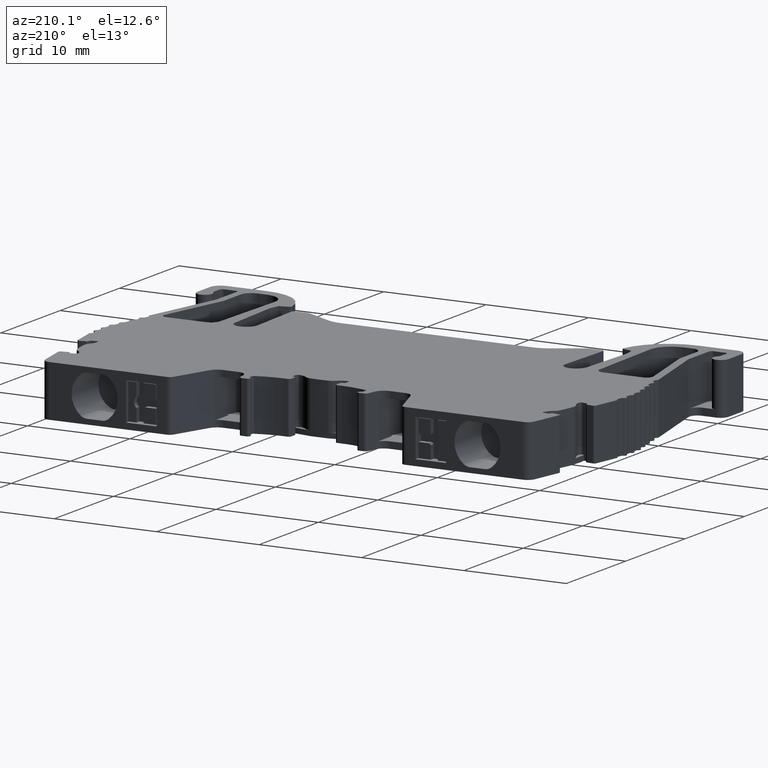
[diagram: clean part render]
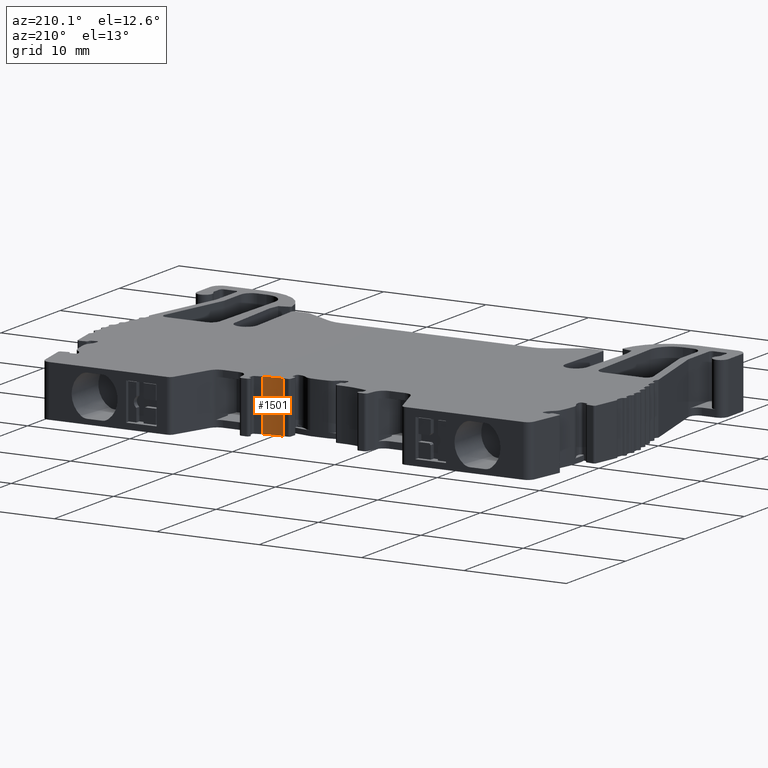
[diagram: same view with one face highlighted and labeled with its STEP entity id]
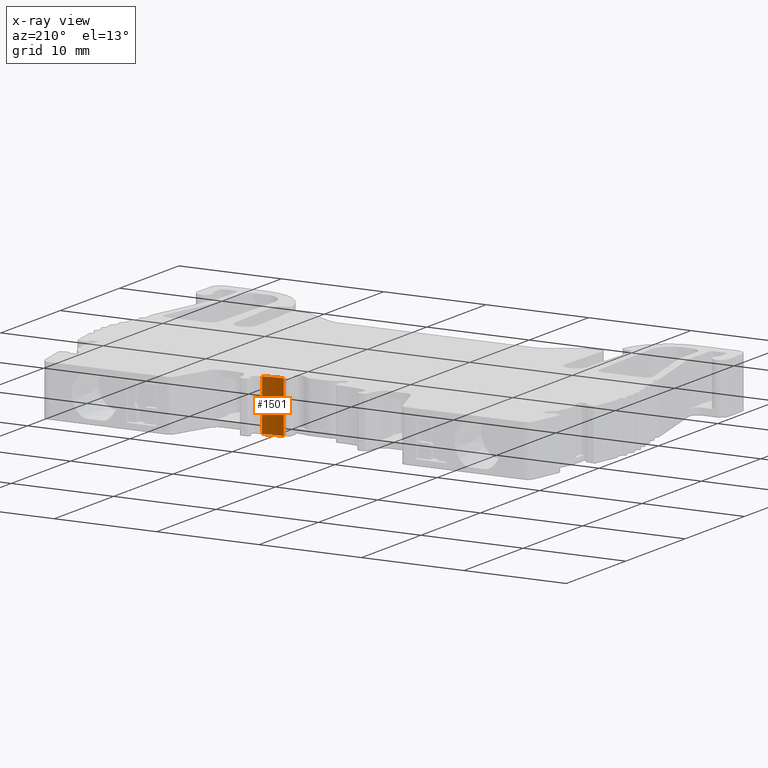
[diagram: x-ray of the same camera — body ghosted, the highlighted face saturated]
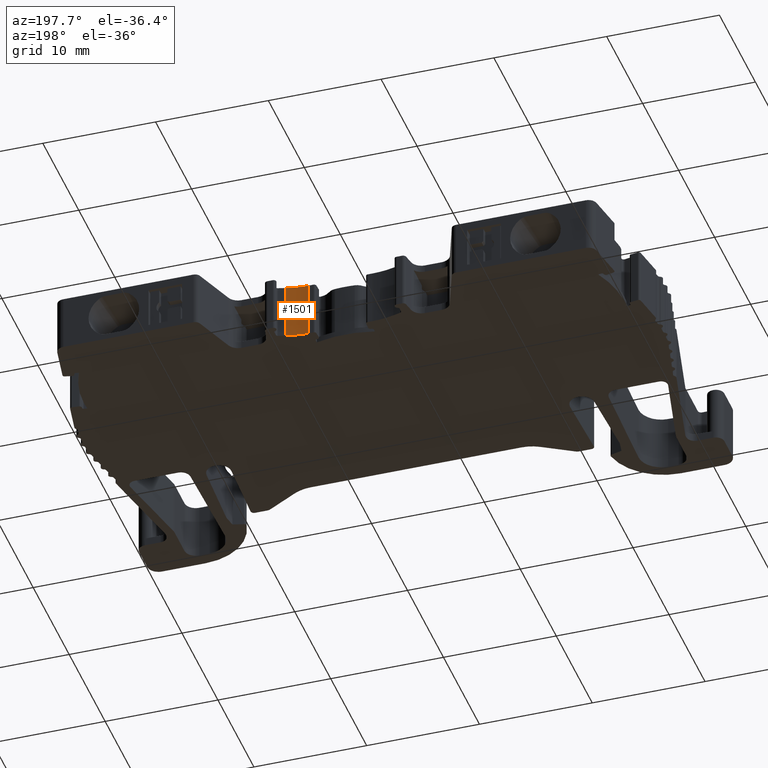
[diagram: same view with one face highlighted and labeled with its STEP entity id]
A machine part, auxiliary view. The second image highlights one B-rep face of the part: STEP entity #1501.
The next image is the same camera in x-ray: the body ghosted, the highlighted face saturated — about 0% of this face is hidden behind the body in this view.
A second angle (auxiliary view) of the same face is appended — the face is thin or edge-on in the first view.
In plain terms, the highlighted cylindrical surface (partial cylindrical patch) has radius 7.4999 mm, axis along (0, 0, -1).
Its self-contained STEP definition (entity closure, byte-faithful):
#330 = ORIENTED_EDGE ( 'NONE', *, *, #11455, .F. ) ;
#348 = ORIENTED_EDGE ( 'NONE', *, *, #11468, .T. ) ;
#377 = ORIENTED_EDGE ( 'NONE', *, *, #11444, .T. ) ;
#381 = ORIENTED_EDGE ( 'NONE', *, *, #12115, .F. ) ;
#785 = EDGE_LOOP ( 'NONE', ( #348, #330, #381, #377 ) ) ;
#1501 = ADVANCED_FACE ( 'NONE', ( #8689 ), #8720, .F. ) ;
#3179 = CARTESIAN_POINT ( 'NONE',  ( 1937.191492159039900, 523.7189389981300600, 2.500000000000000000 ) ) ;
#3187 = DIRECTION ( 'NONE',  ( 0.0000000000000000000, 0.0000000000000000000, -1.000000000000000000 ) ) ;
#3195 = DIRECTION ( 'NONE',  ( -1.000000000000000000, 0.0000000000000000000, 0.0000000000000000000 ) ) ;
#4078 = CARTESIAN_POINT ( 'NONE',  ( 1939.132851718220100, 516.4746394987059800, 2.500000000000000000 ) ) ;
#4097 = DIRECTION ( 'NONE',  ( 0.0000000000000000000, 0.0000000000000000000, -1.000000000000000000 ) ) ;
#4111 = LINE ( 'NONE', #4078, #9613 ) ;
#4132 = CARTESIAN_POINT ( 'NONE',  ( 1937.191714885914700, 516.2190221902069400, 2.500000000000000000 ) ) ;
#4150 = LINE ( 'NONE', #4132, #9632 ) ;
#4157 = DIRECTION ( 'NONE',  ( 0.0000000000000000000, 0.0000000000000000000, -1.000000000000000000 ) ) ;
#4192 = DIRECTION ( 'NONE',  ( 0.0000000000000000000, 0.0000000000000000000, -1.000000000000000000 ) ) ;
#4195 = CARTESIAN_POINT ( 'NONE',  ( 1937.191492159039900, 523.7189389981300600, -2.500000000000000000 ) ) ;
#4198 = DIRECTION ( 'NONE',  ( -1.000000000000000000, 0.0000000000000000000, 0.0000000000000000000 ) ) ;
#5976 = CIRCLE ( 'NONE', #5981, 7.499916811230189500 ) ;
#5981 = AXIS2_PLACEMENT_3D ( 'NONE', #3179, #3187, #3195 ) ;
#6607 = CARTESIAN_POINT ( 'NONE',  ( 1937.191714885914700, 516.2190221902069400, -2.500000000000000000 ) ) ;
#6617 = CARTESIAN_POINT ( 'NONE',  ( 1939.132851718220100, 516.4746394987059800, -2.500000000000000000 ) ) ;
#7607 = CARTESIAN_POINT ( 'NONE',  ( 1939.132851718220100, 516.4746394987059800, 2.500000000000000000 ) ) ;
#7903 = CARTESIAN_POINT ( 'NONE',  ( 1937.191714885914700, 516.2190221902069400, 2.500000000000000000 ) ) ;
#8555 = VERTEX_POINT ( 'NONE', #7903 ) ;
#8689 = FACE_OUTER_BOUND ( 'NONE', #785, .T. ) ;
#8720 = CYLINDRICAL_SURFACE ( 'NONE', #10553, 7.499916811230189500 ) ;
#8721 = CARTESIAN_POINT ( 'NONE',  ( 1937.191492159039900, 523.7189389981300600, 2.500000000000000000 ) ) ;
#8723 = DIRECTION ( 'NONE',  ( 0.0000000000000000000, 0.0000000000000000000, -1.000000000000000000 ) ) ;
#8724 = DIRECTION ( 'NONE',  ( 1.000000000000000000, 0.0000000000000000000, 0.0000000000000000000 ) ) ;
#9605 = CIRCLE ( 'NONE', #9606, 7.499916811230189500 ) ;
#9606 = AXIS2_PLACEMENT_3D ( 'NONE', #4195, #4192, #4198 ) ;
#9613 = VECTOR ( 'NONE', #4097, 1000.000000000000000 ) ;
#9632 = VECTOR ( 'NONE', #4157, 1000.000000000000000 ) ;
#9781 = VERTEX_POINT ( 'NONE', #7607 ) ;
#10267 = VERTEX_POINT ( 'NONE', #6607 ) ;
#10274 = VERTEX_POINT ( 'NONE', #6617 ) ;
#10553 = AXIS2_PLACEMENT_3D ( 'NONE', #8721, #8723, #8724 ) ;
#11444 = EDGE_CURVE ( 'NONE', #9781, #10274, #4111, .T. ) ;
#11455 = EDGE_CURVE ( 'NONE', #8555, #10267, #4150, .T. ) ;
#11468 = EDGE_CURVE ( 'NONE', #10274, #10267, #9605, .T. ) ;
#12115 = EDGE_CURVE ( 'NONE', #9781, #8555, #5976, .T. ) ;